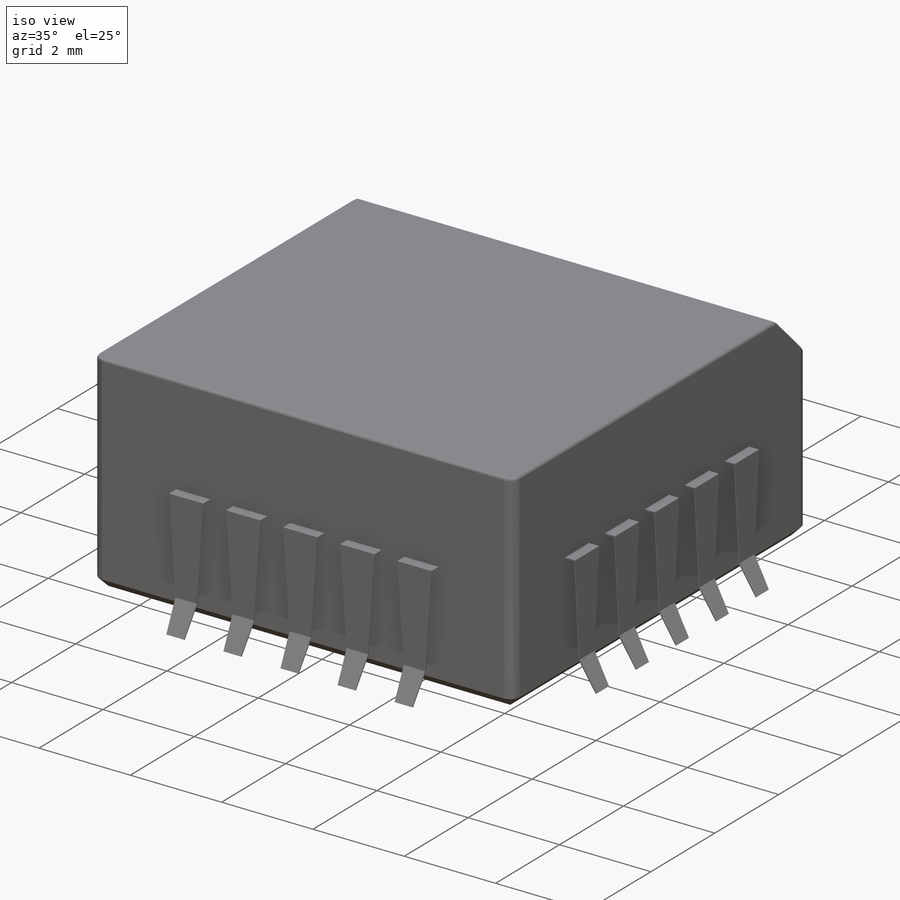
[diagram: iso view]
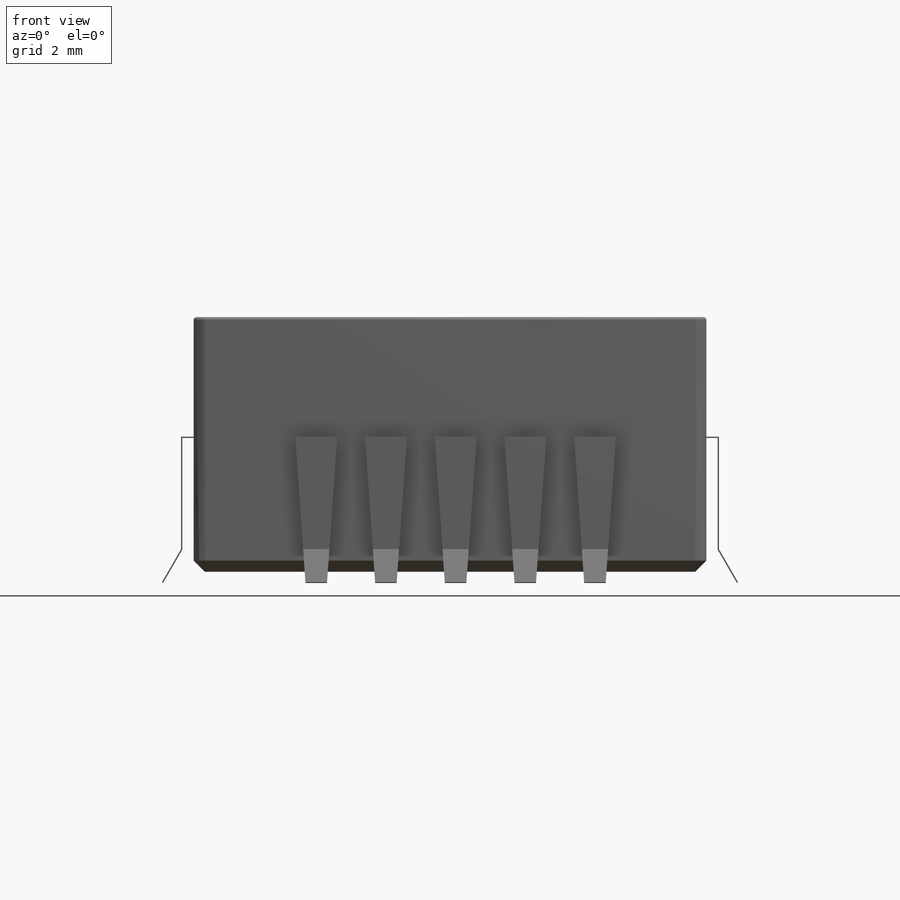
[diagram: front view]
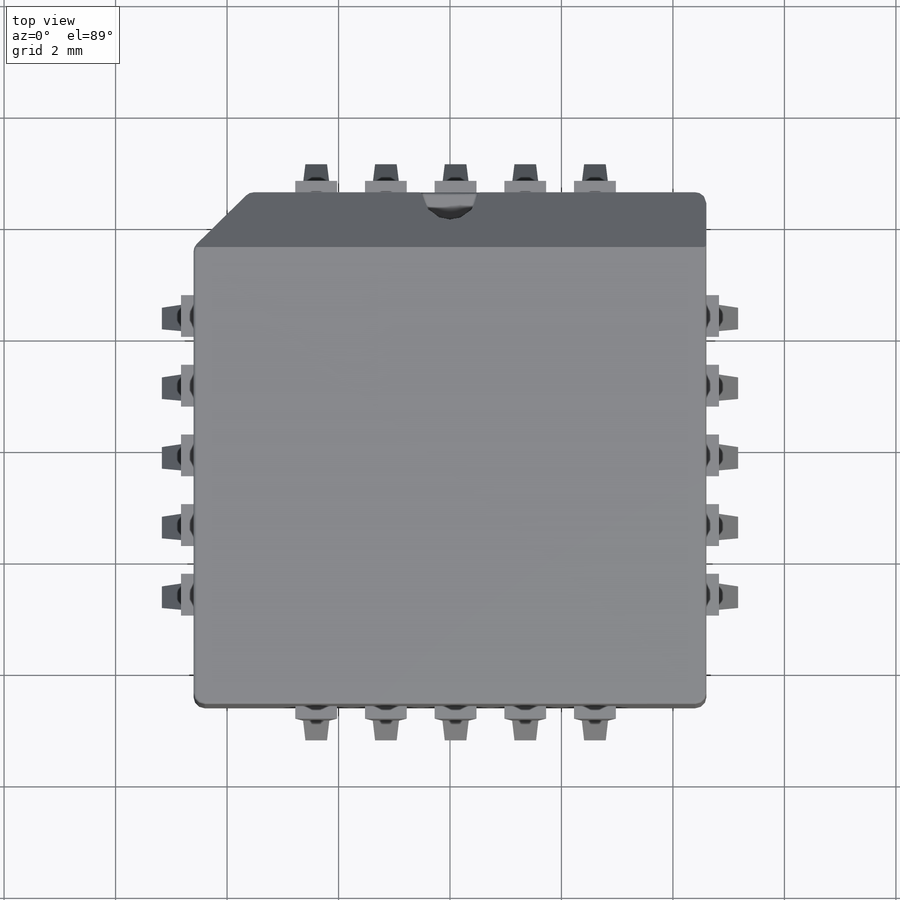
[diagram: top view]
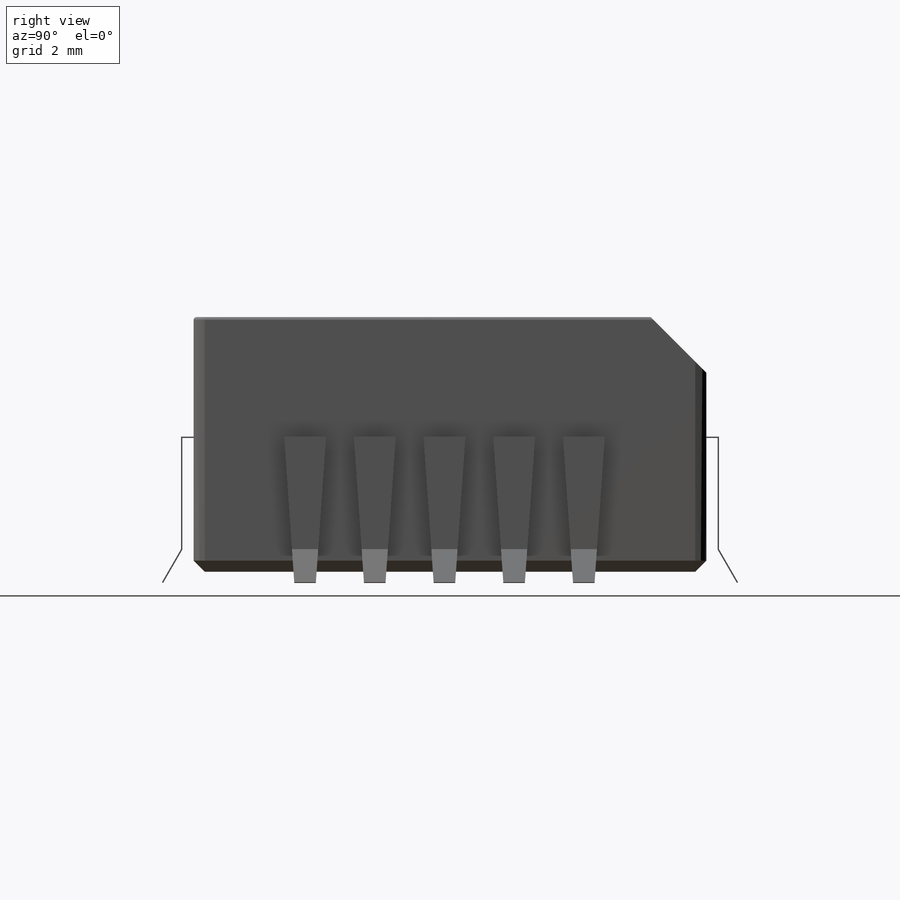
[diagram: right view]
SOLIDWORKS PART (.sldprt)
format: sldprt  version: not decoded by parser v0  size: 446,976 bytes
history: native  units: mm
features: sketch x4, fillet x4, plane x3, mirror x3, chamfer x2, cut_extrude x2, material x1, extrude x1, pattern_linear x1 (+12 scaffold rows collapsed)
feature tree (33):
  scaffold x12  (default folders/planes/origin — collapsed)
  material  "Material <not specified>"
  sketch  "Sketch1"  dims[D1=9.2mm D2=9.2mm D3=0.56mm]
  extrude  "Component_Outline"  Depth=4.57mm
  chamfer  "Chamfer5"  Distance=1mm Angle=45deg
  sketch  "Sketch2"  dims[D1=1.0mm]
  cut_extrude  "Cut-Extrude1"  Depth=1.25mm
  fillet  "Fillet1"  Radius=0.2mm
  fillet  "Fillet3"  [1 undecoded]
  fillet  "Fillet2"  Radius=0.05mm
  fillet  "Fillet4"  Radius=0.05mm
  plane  "Plane4"  Offset=2mm
  sketch  "Sketch3"  dims[c1.D1=0.3mm c1.D2=~0.373535mm c2.D2=120.0deg c2.D3=0.2mm c2.D1=0.3mm c3.D3=0.2mm c3.D1=2.4mm c3.D2=0.2mm c3.D4=0.4mm c4.D4=120.0deg c4.D2=0.4mm c5.D4=0.2mm c5.D5=~0.848368mm c6.D5=30.0deg c6.D1=0.75mm c7.D5=0.025mm c7.D6=1.0mm c7.D7=5.0mm]
  sketch  "Sketch4"  dims[c1.D1=~0.34641mm c2.D1=20.0deg c3.D1=~0.343666mm c4.D1=15.0deg c5.D1=~0.34641mm c6.D1=20.0deg c6.D2=~0.349374mm c7.D2=20.0deg c7.D1=~0.366878mm c8.D1=4.0deg]
  cut_extrude  "Cut-Extrude2"  Depth=0.2mm
  mirror  "Mirror1"
  pattern_linear  "LPattern1"  Count1=5 Count2=1 Spacing1=1.25mm Spacing2=50mm
  plane  "Plane5"  Offset=4.6mm
  mirror  "Mirror2"
  plane  "Plane6"
  mirror  "Mirror3"
  chamfer  "Chamfer1"  Distance=0.2mm Angle=45deg
decode coverage: 13 of 17 modeling features carry decoded parameters
note: ~ marks probable driven/reference dimensions
note: 1 parameter value undecoded
note: suppression state not decoded; provenance and decode notes live in map.json
